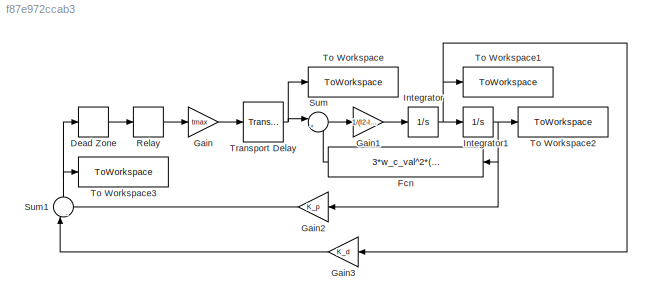
MODEL slx_f87e972ccab3
KIND model
CONFIG AbsTol = auto
CONFIG EnableMultiTasking = off
CONFIG FixedStep = auto
CONFIG MaxStep = auto
CONFIG MinStep = auto
CONFIG RelTol = 1e-3
CONFIG SampleTimeConstraint = Unconstrained
CONFIG SolverName = VariableStepAuto
CONFIG StartTime = 0.0
CONFIG StopTime = 10.0
BLOCK [DeadZone] Dead Zone
  LowerValue = -deadband
  UpperValue = deadband
BLOCK [Fcn] Fcn
  Expr = 3*w_c_val^2*(I1-I3)*sin(u(1))*cos(u(1))
BLOCK [Gain] Gain
  Gain = tmax
BLOCK [Gain] Gain1
  Gain = 1/(I2-Is)
BLOCK [Gain] Gain2
  Gain = K_p
BLOCK [Gain] Gain3
  Gain = K_d
BLOCK [Integrator] Integrator
  InitialCondition = thd_0
BLOCK [Integrator] Integrator1
BLOCK [Signum] Relay
BLOCK [Sum] Sum
  Inputs = |+-
BLOCK [Sum] Sum1
  Inputs = |--
  NameLocation = right
BLOCK [ToWorkspace] To Workspace
  FixptAsFi = on
  MaxDataPoints = inf
  SampleTime = -1
  VariableName = u
BLOCK [ToWorkspace] To Workspace1
  FixptAsFi = on
  MaxDataPoints = inf
  SampleTime = -1
  VariableName = th2d
BLOCK [ToWorkspace] To Workspace2
  FixptAsFi = on
  MaxDataPoints = inf
  SampleTime = -1
  VariableName = th2
BLOCK [ToWorkspace] To Workspace3
  FixptAsFi = on
  MaxDataPoints = inf
  SampleTime = -1
  VariableName = u_star
BLOCK [TransportDelay] Transport Delay
  DelayTime = td
LINE Dead Zone:1 -> Relay:1
LINE Fcn:1 -> Sum:2
LINE Gain1:1 -> Integrator:1
LINE Gain2:1 -> Sum1:2
LINE Gain3:1 -> Sum1:1
LINE Gain:1 -> Transport Delay:1
NET Integrator1:1 -> Fcn:1, Gain2:1, To Workspace2:1
NET Integrator:1 -> Gain3:1, Integrator1:1, To Workspace1:1
LINE Relay:1 -> Gain:1
NET Sum1:1 -> Dead Zone:1, To Workspace3:1
LINE Sum:1 -> Gain1:1
NET Transport Delay:1 -> Sum:1, To Workspace:1
note: NET lines group one-source signal fan-out (src -> all destinations, sorted); 1:1 wires keep LINE
